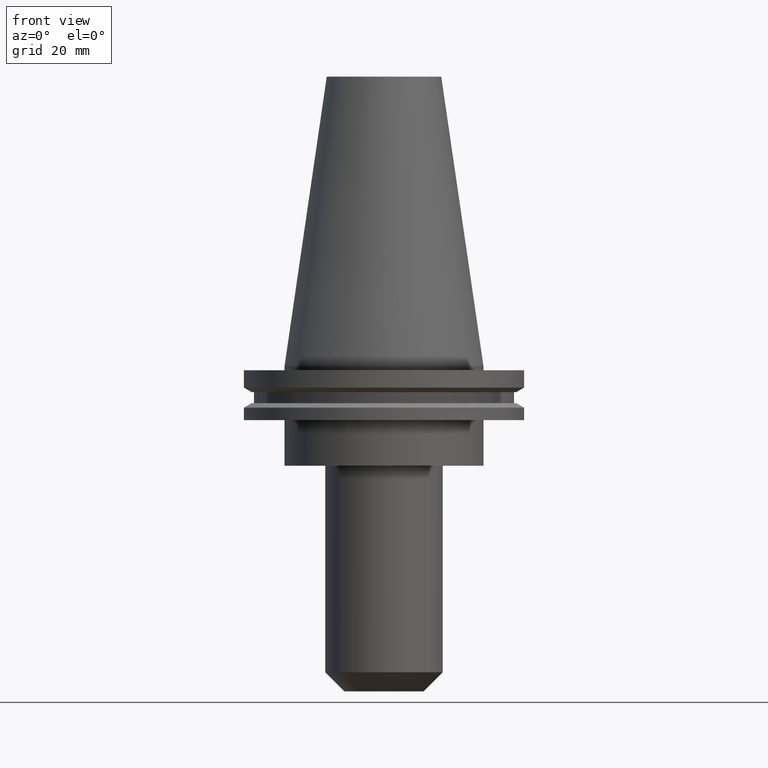
[diagram: clean part render]
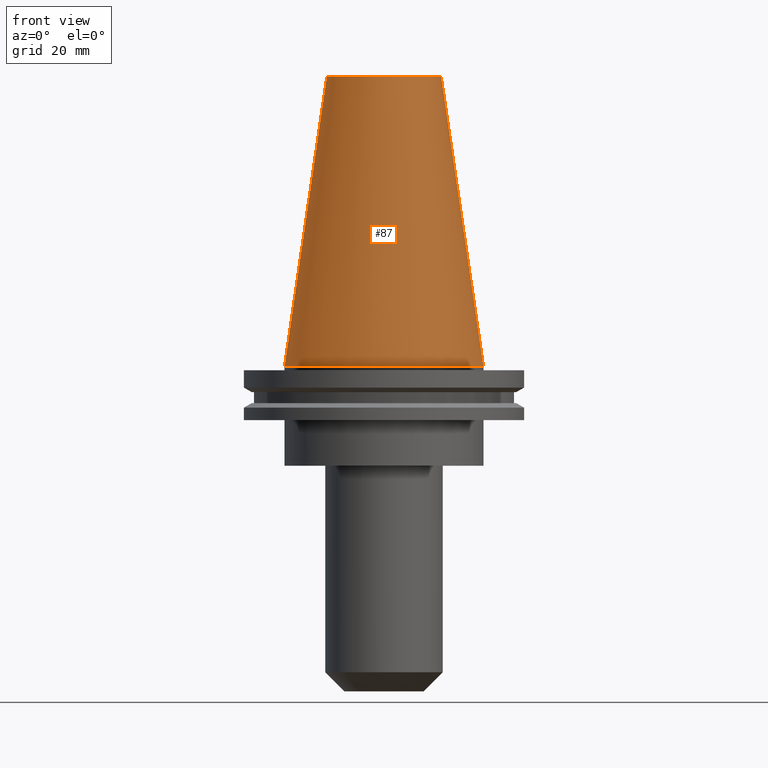
[diagram: same view with one face highlighted and labeled with its STEP entity id]
A machine part, front view. The second image highlights one B-rep face of the part: STEP entity #87.
In plain terms, the highlighted conical surface has half-angle 8.297 deg.
Its self-contained STEP definition (entity closure, byte-faithful):
#4 = ORIENTED_EDGE ( 'NONE', *, *, #390, .F. ) ;
#34 = VERTEX_POINT ( 'NONE', #327 ) ;
#53 = DIRECTION ( 'NONE',  ( 0.1443082272672999988, 1.767266086135277066E-17, -0.9895327864921755756 ) ) ;
#87 = ADVANCED_FACE ( 'NONE', ( #636 ), #203, .T. ) ;
#120 = AXIS2_PLACEMENT_3D ( 'NONE', #251, #123, #644 ) ;
#123 = DIRECTION ( 'NONE',  ( 0.000000000000000000, 0.000000000000000000, -1.000000000000000000 ) ) ;
#129 = CARTESIAN_POINT ( 'NONE',  ( -20.10819343178871321, 0.000000000000000000, 101.5999999999999801 ) ) ;
#130 = VECTOR ( 'NONE', #53, 999.9999999999998863 ) ;
#165 = CARTESIAN_POINT ( 'NONE',  ( 20.10819343178871321, 3.369811209154858606E-15, 101.5999999999999801 ) ) ;
#203 = CONICAL_SURFACE ( 'NONE', #120, 34.92499999999999005, 0.1448138465474119452 ) ;
#211 = ORIENTED_EDGE ( 'NONE', *, *, #617, .T. ) ;
#217 = CARTESIAN_POINT ( 'NONE',  ( -34.92499999999999005, 0.000000000000000000, 0.000000000000000000 ) ) ;
#219 = DIRECTION ( 'NONE',  ( 1.000000000000000000, 0.000000000000000000, 0.000000000000000000 ) ) ;
#251 = CARTESIAN_POINT ( 'NONE',  ( 0.000000000000000000, 0.000000000000000000, 0.000000000000000000 ) ) ;
#277 = DIRECTION ( 'NONE',  ( 1.000000000000000000, 0.000000000000000000, 0.000000000000000000 ) ) ;
#287 = CARTESIAN_POINT ( 'NONE',  ( 0.000000000000000000, 0.000000000000000000, 101.5999999999999801 ) ) ;
#327 = CARTESIAN_POINT ( 'NONE',  ( -34.92499999999999005, 0.000000000000000000, 0.000000000000000000 ) ) ;
#346 = CARTESIAN_POINT ( 'NONE',  ( 0.000000000000000000, 0.000000000000000000, 0.000000000000000000 ) ) ;
#365 = CARTESIAN_POINT ( 'NONE',  ( 34.92499999999999005, 4.277078946022130098E-15, 0.000000000000000000 ) ) ;
#390 = EDGE_CURVE ( 'NONE', #489, #460, #573, .T. ) ;
#400 = AXIS2_PLACEMENT_3D ( 'NONE', #287, #810, #219 ) ;
#419 = DIRECTION ( 'NONE',  ( -0.1443082272672999988, 0.000000000000000000, -0.9895327864921755756 ) ) ;
#460 = VERTEX_POINT ( 'NONE', #165 ) ;
#464 = EDGE_CURVE ( 'NONE', #460, #711, #692, .T. ) ;
#489 = VERTEX_POINT ( 'NONE', #129 ) ;
#519 = VECTOR ( 'NONE', #419, 999.9999999999998863 ) ;
#529 = EDGE_CURVE ( 'NONE', #34, #711, #807, .T. ) ;
#573 = CIRCLE ( 'NONE', #400, 20.10819343178871321 ) ;
#608 = DIRECTION ( 'NONE',  ( -0.000000000000000000, -0.000000000000000000, 1.000000000000000000 ) ) ;
#617 = EDGE_CURVE ( 'NONE', #489, #34, #809, .T. ) ;
#623 = CARTESIAN_POINT ( 'NONE',  ( 34.92499999999999005, 4.277078946022130098E-15, 0.000000000000000000 ) ) ;
#627 = ORIENTED_EDGE ( 'NONE', *, *, #464, .F. ) ;
#635 = AXIS2_PLACEMENT_3D ( 'NONE', #346, #608, #277 ) ;
#636 = FACE_OUTER_BOUND ( 'NONE', #706, .T. ) ;
#644 = DIRECTION ( 'NONE',  ( -1.000000000000000000, 0.000000000000000000, 0.000000000000000000 ) ) ;
#692 = LINE ( 'NONE', #623, #130 ) ;
#706 = EDGE_LOOP ( 'NONE', ( #627, #4, #211, #767 ) ) ;
#711 = VERTEX_POINT ( 'NONE', #365 ) ;
#767 = ORIENTED_EDGE ( 'NONE', *, *, #529, .T. ) ;
#807 = CIRCLE ( 'NONE', #635, 34.92499999999999005 ) ;
#809 = LINE ( 'NONE', #217, #519 ) ;
#810 = DIRECTION ( 'NONE',  ( -0.000000000000000000, -0.000000000000000000, 1.000000000000000000 ) ) ;